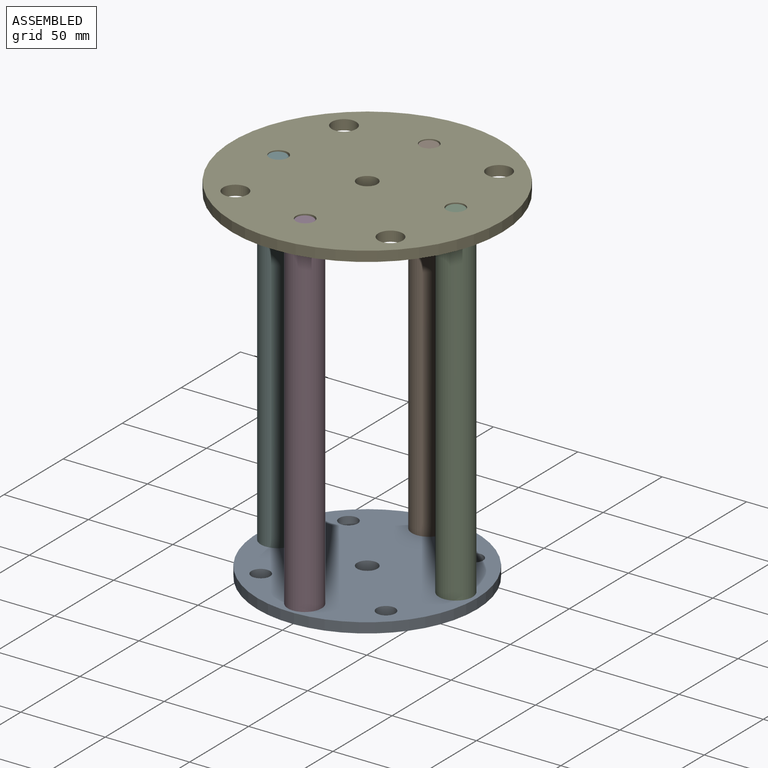
[diagram: assembled view]
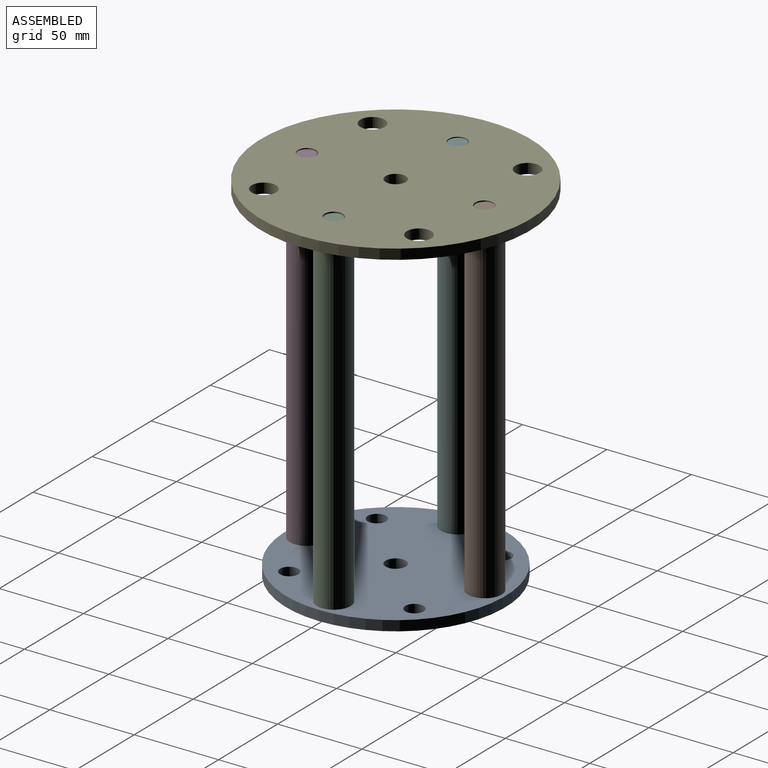
[diagram: assembled view, second angle]
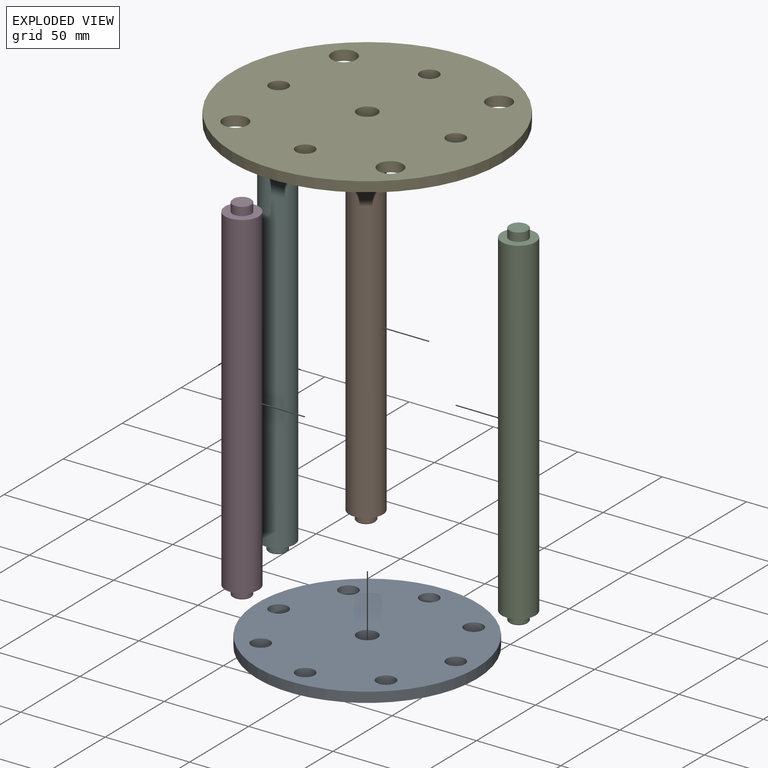
[diagram: exploded view]
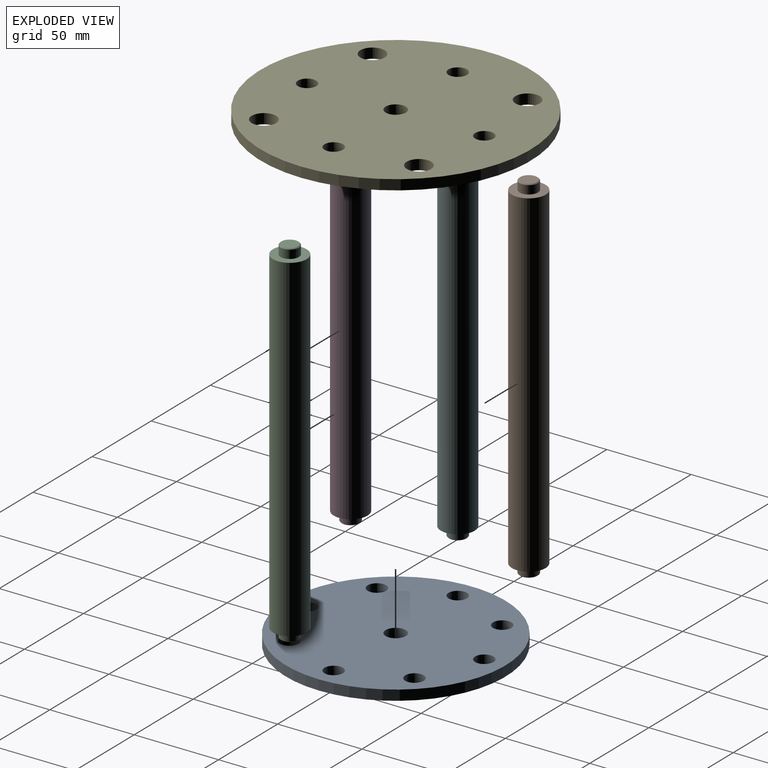
[diagram: exploded view, second angle]
ASSEMBLY  parts=6 mates=2
PART A: 12 faces, bbox 130x130x6 mm
  f0: cylinder r=6mm len=12mm, axis (0,0,-1), area 226.2mm2, adj f10,f11
  f1: cylinder r=5.5mm len=11mm, axis (0,0,-1), area 207.3mm2, adj f10,f11
  f2: cylinder r=5.5mm len=11mm, axis (0,0,-1), area 207.3mm2, adj f10,f11
  f3: cylinder r=5.5mm len=11mm, axis (0,0,-1), area 207.3mm2, adj f10,f11
  f4: cylinder r=5.5mm len=11mm, axis (0,0,-1), area 207.3mm2, adj f10,f11
  f5: cylinder r=5.5mm len=11mm, axis (0,0,-1), area 207.3mm2, adj f10,f11
  f6: cylinder r=5.5mm len=11mm, axis (0,0,-1), area 207.3mm2, adj f10,f11
  f7: cylinder r=5.5mm len=11mm, axis (0,0,-1), area 207.3mm2, adj f10,f11
  f8: cylinder r=5.5mm len=11mm, axis (0,0,-1), area 207.3mm2, adj f10,f11
  f9: cylinder r=65mm len=130mm, axis (0,0,-1), area 2450.4mm2, adj f10,f11
  f10: plane 130x130mm, normal (0,0,1), area 12399.9mm2, adj f0,f1,f2,f3,f4,f5,f6,f7
  f11: plane 130x130mm, normal (0,0,-1), area 12399.9mm2, adj f0,f1,f2,f3,f4,f5,f6,f7
PART B: 9 faces, bbox 211x20x20 mm
  f0: cylinder r=5.5mm len=11mm, axis (-1,0,0), area 172.8mm2, adj f6,f8
  f1: plane 10x10mm, normal (-1,0,0), area 78.5mm2, adj f8
  f2: plane 10x10mm, normal (1,0,0), area 78.5mm2, adj f7
  f3: cylinder r=5.5mm len=11mm, axis (-1,0,0), area 172.8mm2, adj f4,f7
  f4: plane 20x20mm, normal (1,0,0), area 219.1mm2, adj f3,f5
  f5: cylinder r=10mm len=200mm, axis (-1,0,0), area 12566.4mm2, adj f4,f6
  f6: plane 20x20mm, normal (-1,0,0), area 219.1mm2, adj f0,f5
  f7: cone r=5.5mm half-angle=45deg, axis (-1,0,0), area 23.3mm2, adj f2,f3
  f8: cone r=5mm half-angle=45deg, axis (1,0,0), area 23.3mm2, adj f0,f1
PART C: same geometry as B
PART D: same geometry as B
PART E: 12 faces, bbox 160x160x6 mm
  f0: cylinder r=7.25mm len=14.5mm, axis (0,0,-1), area 273.3mm2, adj f10,f11
  f1: cylinder r=7.25mm len=14.5mm, axis (0,0,-1), area 273.3mm2, adj f10,f11
  f2: cylinder r=7.25mm len=14.5mm, axis (0,0,-1), area 273.3mm2, adj f10,f11
  f3: cylinder r=7.25mm len=14.5mm, axis (0,0,-1), area 273.3mm2, adj f10,f11
  f4: cylinder r=5.5mm len=11mm, axis (0,0,-1), area 207.3mm2, adj f10,f11
  f5: cylinder r=5.5mm len=11mm, axis (0,0,-1), area 207.3mm2, adj f10,f11
  f6: cylinder r=5.5mm len=11mm, axis (0,0,-1), area 207.3mm2, adj f10,f11
  f7: cylinder r=5.5mm len=11mm, axis (0,0,-1), area 207.3mm2, adj f10,f11
  f8: cylinder r=6mm len=12mm, axis (0,0,-1), area 226.2mm2, adj f10,f11
  f9: cylinder r=80mm len=160mm, axis (0,0,-1), area 3015.9mm2, adj f10,f11
  f10: plane 160x160mm, normal (0,0,1), area 18952.4mm2, adj f0,f1,f2,f3,f4,f5,f6,f7
  f11: plane 160x160mm, normal (0,0,-1), area 18952.4mm2, adj f0,f1,f2,f3,f4,f5,f6,f7
PART F: same geometry as B
PLACE A t=(0.19,0.13,-211.5)mm
PLACE B rot(axis=(-0.58,-0.58,-0.58),120deg) t=(-0.13,52.69,-140.49)mm
PLACE C rot(axis=(0.71,0,0.71),180deg) t=(52.69,0.13,-140.49)mm
PLACE D rot(axis=(0.58,-0.58,0.58),120deg) t=(0.13,-52.69,-140.49)mm
PLACE E t=(0.19,0.13,-5.5)mm fixed
PLACE F rot(axis=(0,-1,0),90deg) t=(-52.69,-0.13,-140.49)mm
MATE cylindrical C.f0 <-> E.f7  axis (0,0,-1) through (52.69,0.13,-3)mm
MATE planar A.f7 <-> C.f0  axis (0,0,1) through (52.69,0.13,-205.5)mm
